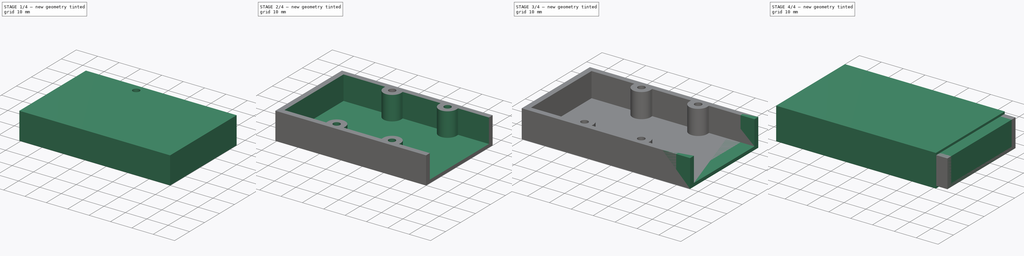
[diagram: build sequence overview — one tinted view per stage of 4, left to right]
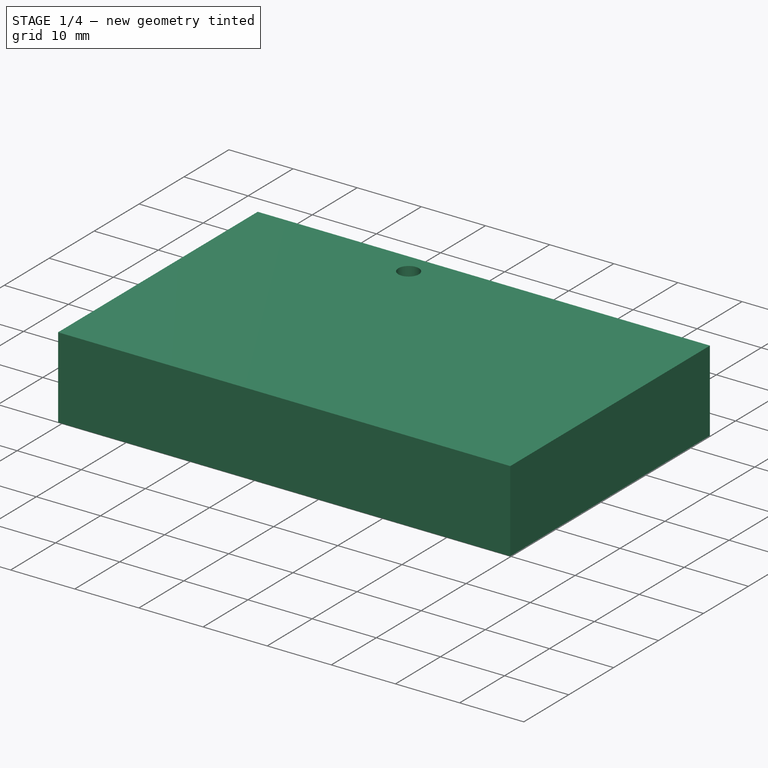
[diagram: stage 1 of 4 — iso view after this stage's code; geometry added in this stage tinted green]
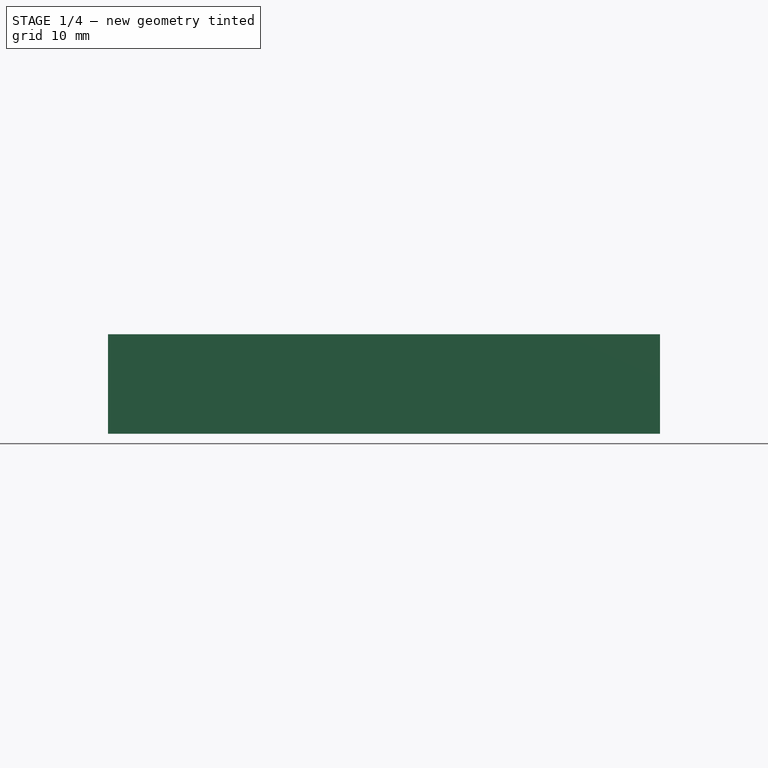
[diagram: stage 1 of 4 — front view after this stage's code; geometry added in this stage tinted green]
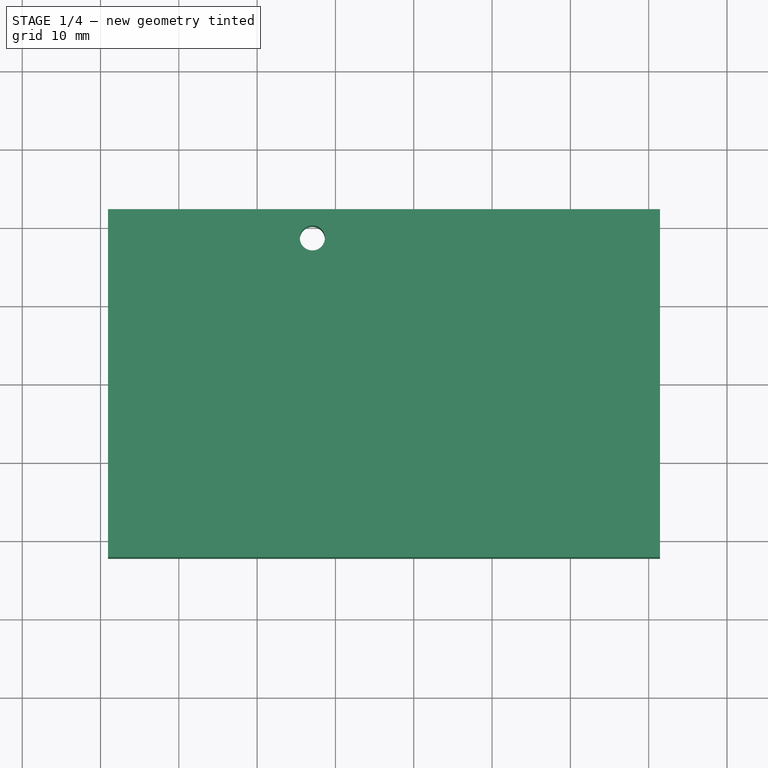
[diagram: stage 1 of 4 — top view after this stage's code; geometry added in this stage tinted green]
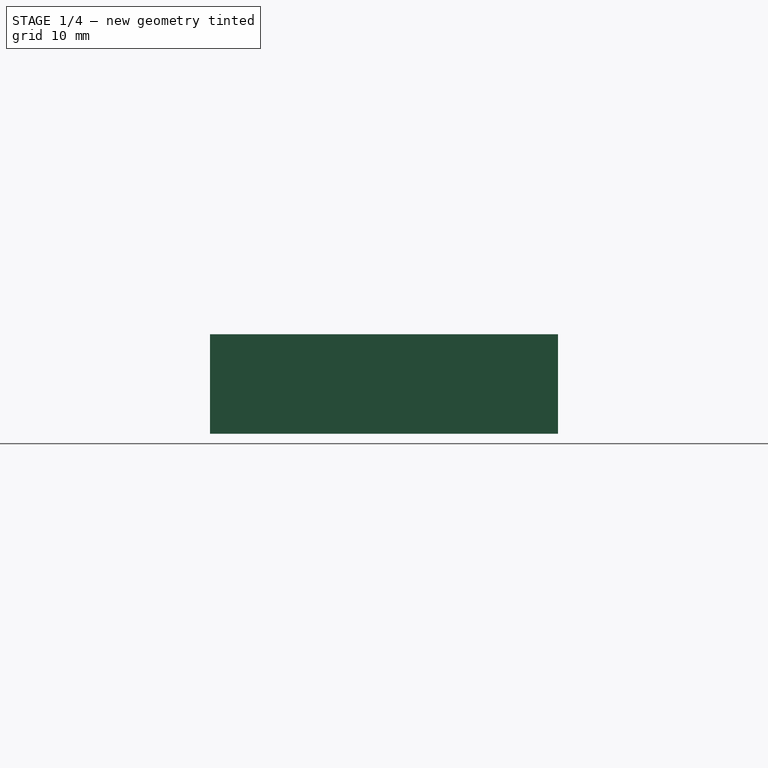
[diagram: stage 1 of 4 — right view after this stage's code; geometry added in this stage tinted green]
FCSTD DOCUMENT  (FreeCAD 0.17R13541 (Git))
Label: CAM_Keithley_17X_USB_Top
License: All rights reserved
LicenseURL: http://en.wikipedia.org/wiki/All_rights_reserved
objects: Path::FeaturePython×8, Sketcher::SketchObject×5, Part::FeaturePython×4, PartDesign::Pocket×3, PartDesign::Pad×2, PartDesign::Mirrored×2, PartDesign::Body×2, App::FeaturePython×2, Path::FeatureCompoundPython×2, Spreadsheet::Sheet×1, PartDesign::MultiTransform×1
note: 27 computed .brp shape members not serialized (recipe doc carries the construction recipe); baked Part::Feature solids carry a one-line shape summary decoded from their .brp

FEATURE [Spreadsheet::Sheet] Spreadsheet  label="dims"
  cells = A1=Case Thickness; B1(case_t)==0.5in; A2=Case Length; B2(case_l)=70.5; A3=Case Width; B3(case_w)==1.75in; A4=Case Side Thickness; B4(case_side_t)=2.5; A5=Case Top Thickness; B5(case_top_t)=1.5; A6=Mount Hole Diameter; B6(mnt_dia)=3.2000000000000002; A7=Mount Hole X Spacing; B7(mnt_x)=25.899999999999999; A8=Mount Hole Y Spacing; B8(mnt_y)=37.100000000000001; A9=PCB Right to Center; B9(right_to_cl)=31.449999999999999
FEATURE [Sketcher::SketchObject] Sketch
  MapMode = 5
  Support = -> [XY_Plane]
  expr: Constraints[11] = dims.right_to_cl
  expr: Constraints[10] = dims.case_w
  expr: Constraints[9] = dims.case_l
  sketch-geometry (4):
    g0: LineSegment StartX=-39.05 StartY=22.225 StartZ=0 EndX=31.45 EndY=22.225 EndZ=0
    g1: LineSegment StartX=31.45 StartY=22.225 StartZ=0 EndX=31.45 EndY=-22.225 EndZ=0
    g2: LineSegment StartX=31.45 StartY=-22.225 StartZ=0 EndX=-39.05 EndY=-22.225 EndZ=0
    g3: LineSegment StartX=-39.05 StartY=-22.225 StartZ=0 EndX=-39.05 EndY=22.225 EndZ=0
  constraints (12):
    c: Coincident(g0,g1)
    c: Coincident(g1,g2)
    c: Coincident(g2,g3)
    c: Coincident(g3,g0)
    c: Horizontal(g0)
    c: Horizontal(g2)
    c: Vertical(g1)
    c: Vertical(g3)
    c: Symmetric(g0,g1,g-1)
    c: DistanceX(g0,g0) = 70.5
    c: DistanceY(g1,g1) = 44.45
    c: DistanceX(g-1,g0) = 31.45
FEATURE [PartDesign::Pad] Pad
  Length = 12.7
  Length2 = 100
  Profile = -> Sketch
  Refine = true
  Type = 0
  expr: Length = dims.case_t
FEATURE [Sketcher::SketchObject] Sketch001
  MapMode = 5
  Placement = pos=(0,0,12.7) rot=(0,0,1;0rad)
  Support = -> [Pad]
  expr: Constraints[2] = dims.mnt_y / 2
  expr: Constraints[1] = dims.mnt_x / 2
  expr: Constraints[0] = dims.mnt_dia / 2
  sketch-geometry (1):
    g0: Circle CenterX=-12.95 CenterY=18.55 CenterZ=0 NormalX=0 NormalY=0 NormalZ=1 AngleXU=0 Radius=1.6
  constraints (3):
    c: Radius(g0) = 1.6
    c: DistanceX(g0,g-1) = 12.95
    c: DistanceY(g-1,g0) = 18.55
FEATURE [PartDesign::Pocket] Pocket
  BaseFeature = -> Pad
  Length = 5
  Length2 = 100
  Profile = -> Sketch001
  Refine = true
  Type = 1
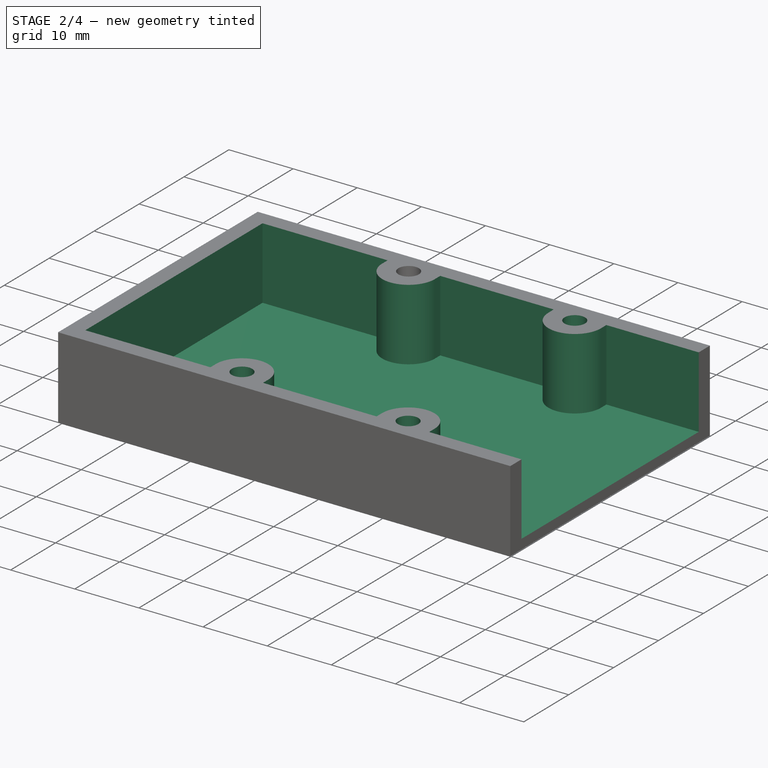
[diagram: stage 2 of 4 — iso view after this stage's code; geometry added in this stage tinted green]
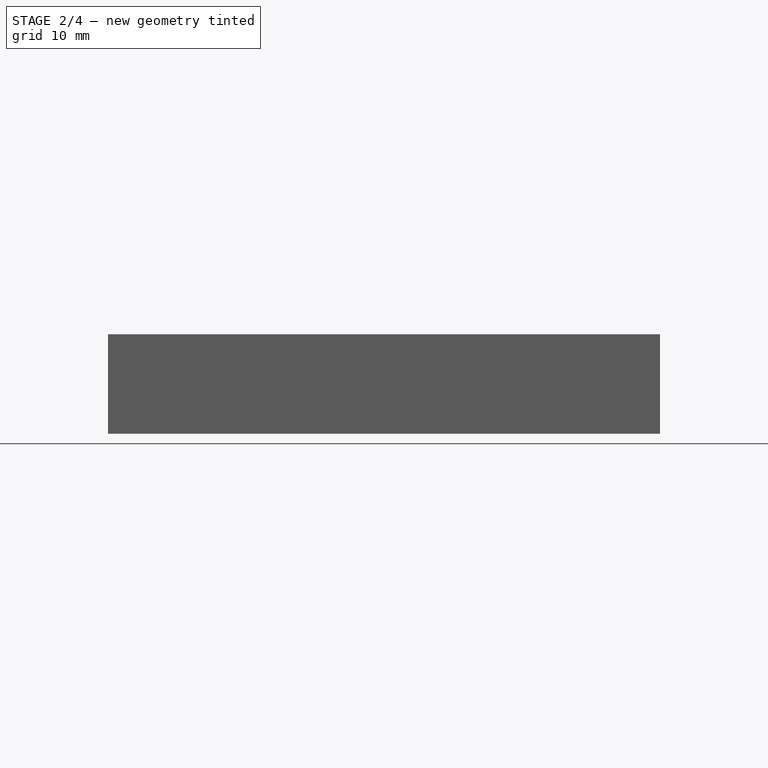
[diagram: stage 2 of 4 — front view after this stage's code; geometry added in this stage tinted green]
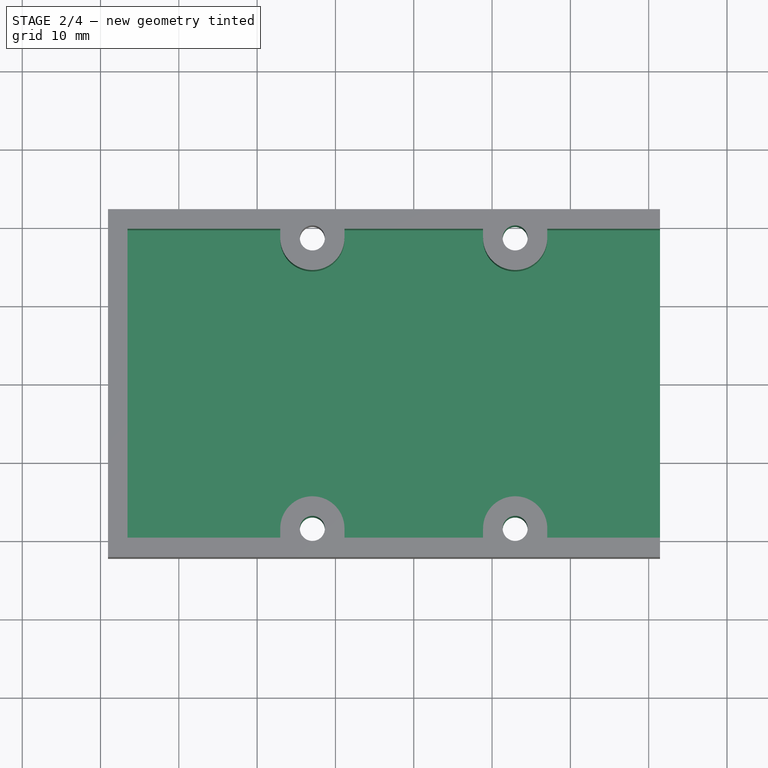
[diagram: stage 2 of 4 — top view after this stage's code; geometry added in this stage tinted green]
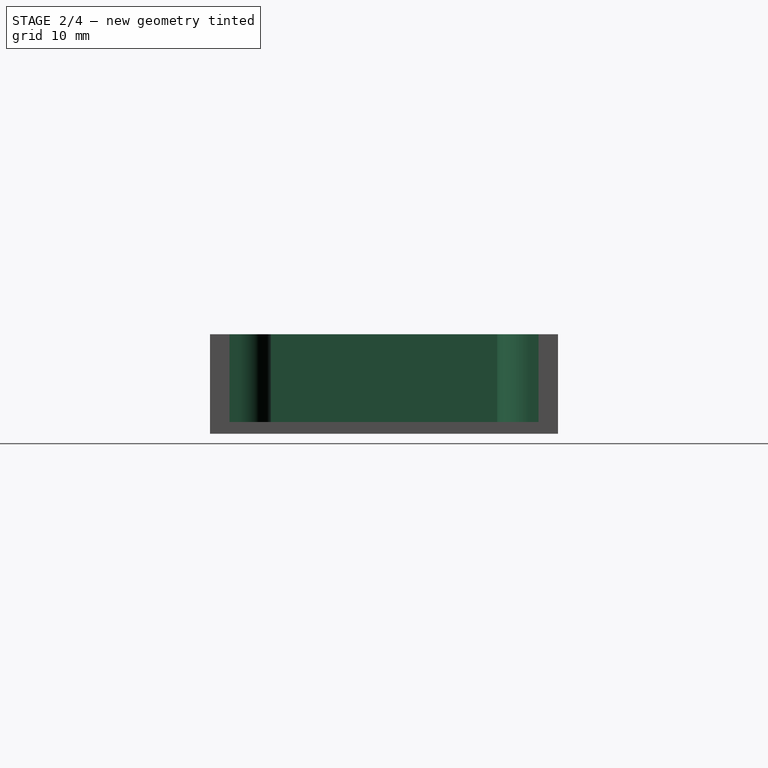
[diagram: stage 2 of 4 — right view after this stage's code; geometry added in this stage tinted green]
FEATURE [PartDesign::Mirrored] Mirrored
  MirrorPlane = -> YZ_Plane
  Refine = true
FEATURE [PartDesign::Mirrored] Mirrored001
  MirrorPlane = -> XZ_Plane
  Refine = true
FEATURE [PartDesign::MultiTransform] MultiTransform
  BaseFeature = -> Pocket
  Originals = -> [Pocket]
  Refine = true
  Transformations = -> [Mirrored,Mirrored001]
FEATURE [Sketcher::SketchObject] Sketch002
  ExternalGeometry = -> [MultiTransform]
  MapMode = 5
  Placement = pos=(0,0,0) rot=(1,0,0;3.14159rad)
  Support = -> [MultiTransform]
  expr: Constraints[10] = dims.case_side_t
  expr: Constraints[11] = dims.case_side_t
  expr: Constraints[28] = dims.mnt_dia / 2 + dims.case_side_t
  expr: Constraints[29] = dims.mnt_dia / 2 + dims.case_side_t
  expr: Constraints[36] = dims.mnt_dia / 2 + dims.case_side_t
  expr: Constraints[37] = dims.mnt_dia / 2 + dims.case_side_t
  sketch-geometry (28):
    g0: LineSegment [constr] StartX=-36.55 StartY=19.725 StartZ=0 EndX=31.45 EndY=19.725 EndZ=0
    g1: LineSegment [constr] StartX=31.45 StartY=19.725 StartZ=0 EndX=31.45 EndY=-19.725 EndZ=0
    g2: LineSegment [constr] StartX=31.45 StartY=-19.725 StartZ=0 EndX=-36.55 EndY=-19.725 EndZ=0
    g3: LineSegment [constr] StartX=-36.55 StartY=-19.725 StartZ=0 EndX=-36.55 EndY=19.725 EndZ=0
    g4: LineSegment StartX=-36.55 StartY=-19.725 StartZ=0 EndX=-36.55 EndY=19.725 EndZ=0
    g5: LineSegment StartX=-36.55 StartY=19.725 StartZ=0 EndX=-17.05 EndY=19.725 EndZ=0
    g6: LineSegment StartX=31.45 StartY=19.725 StartZ=0 EndX=17.05 EndY=19.725 EndZ=0
    g7: LineSegment StartX=31.45 StartY=-19.725 StartZ=0 EndX=17.05 EndY=-19.725 EndZ=0
    g8: LineSegment StartX=-36.55 StartY=-19.725 StartZ=0 EndX=-17.05 EndY=-19.725 EndZ=0
    g9: LineSegment [constr] StartX=-17.05 StartY=19.725 StartZ=0 EndX=-17.05 EndY=-19.725 EndZ=0
    g10: LineSegment [constr] StartX=17.05 StartY=19.725 StartZ=0 EndX=17.05 EndY=-19.725 EndZ=0
    g11: LineSegment StartX=31.45 StartY=19.725 StartZ=0 EndX=31.45 EndY=-19.725 EndZ=0
    g12: LineSegment StartX=-8.85 StartY=19.725 StartZ=0 EndX=8.85 EndY=19.725 EndZ=0
    g13: LineSegment StartX=-8.85 StartY=-19.725 StartZ=0 EndX=8.85 EndY=-19.725 EndZ=0
    g14: LineSegment [constr] StartX=-8.85 StartY=19.725 StartZ=0 EndX=-8.85 EndY=-19.725 EndZ=0
    g15: LineSegment [constr] StartX=8.85 StartY=-19.725 StartZ=0 EndX=8.85 EndY=19.725 EndZ=0
    g16: LineSegment StartX=-17.05 StartY=19.725 StartZ=0 EndX=-17.05 EndY=18.55 EndZ=0
    g17: LineSegment StartX=-8.85 StartY=19.725 StartZ=0 EndX=-8.85 EndY=18.55 EndZ=0
    g18: ArcOfCircle CenterX=-12.95 CenterY=18.55 CenterZ=0 NormalX=0 NormalY=0 NormalZ=1 AngleXU=0 Radius=4.1 StartAngle=3.14159 EndAngle=6.28319
    g19: LineSegment StartX=8.85 StartY=19.725 StartZ=0 EndX=8.85 EndY=18.55 EndZ=0
    g20: LineSegment StartX=17.05 StartY=19.725 StartZ=0 EndX=17.05 EndY=18.55 EndZ=0
    g21: LineSegment StartX=17.05 StartY=-19.725 StartZ=0 EndX=17.05 EndY=-18.55 EndZ=0
    g22: LineSegment StartX=8.85 StartY=-19.725 StartZ=0 EndX=8.85 EndY=-18.55 EndZ=0
    g23: LineSegment StartX=-8.85 StartY=-19.725 StartZ=0 EndX=-8.85 EndY=-18.55 EndZ=0
    g24: LineSegment StartX=-17.05 StartY=-19.725 StartZ=0 EndX=-17.05 EndY=-18.55 EndZ=0
    g25: ArcOfCircle CenterX=12.95 CenterY=18.55 CenterZ=0 NormalX=0 NormalY=0 NormalZ=1 AngleXU=0 Radius=4.1 StartAngle=3.14159 EndAngle=6.28319
    g26: ArcOfCircle CenterX=-12.95 CenterY=-18.55 CenterZ=0 NormalX=0 NormalY=0 NormalZ=1 AngleXU=0 Radius=4.1 StartAngle=2.0124e-08 EndAngle=3.14159
    g27: ArcOfCircle CenterX=12.95 CenterY=-18.55 CenterZ=0 NormalX=0 NormalY=0 NormalZ=1 AngleXU=0 Radius=4.1 StartAngle=4.55866e-06 EndAngle=3.14159
  constraints (76):
    c: Coincident(g0,g1)
    c: Coincident(g1,g2)
    c: Coincident(g2,g3)
    c: Coincident(g3,g0)
    c: Horizontal(g0)
    c: Horizontal(g2)
    c: Vertical(g1)
    c: Vertical(g3)
    c: PointOnObject(g1,g-10)
    c: Symmetric(g0,g1,g-1)
    c: DistanceY(g0,g-10) = 2.5
    c: DistanceX(g-4,g0) = 2.5
    c: Coincident(g4,g2)
    c: Coincident(g5,g4)
    c: Coincident(g6,g0)
    c: Coincident(g8,g2)
    c: Coincident(g4,g0)
    c: Coincident(g7,g1)
    c: PointOnObject(g7,g2)
    c: PointOnObject(g6,g0)
    c: PointOnObject(g5,g0)
    c: PointOnObject(g8,g2)
    c: Coincident(g9,g5)
    c: Coincident(g10,g6)
    c: Coincident(g10,g7)
    c: Coincident(g9,g8)
    c: Vertical(g9)
    c: Vertical(g10)
    c: DistanceX(g5,g-9) = 4.1
    c: DistanceX(g-8,g6) = 4.1
    c: Coincident(g11,g0)
    c: Coincident(g11,g1)
    c: PointOnObject(g12,g0)
    c: PointOnObject(g13,g2)
    c: PointOnObject(g12,g0)
    c: PointOnObject(g13,g2)
    c: DistanceX(g-9,g12) = 4.1
    c: DistanceX(g12,g-8) = 4.1
    c: Coincident(g14,g12)
    c: Coincident(g14,g13)
    c: Vertical(g14)
    c: Coincident(g15,g13)
    c: Coincident(g15,g12)
    c: Vertical(g15)
    c: Coincident(g16,g5)
    c: Coincident(g17,g12)
    c: PointOnObject(g17,g14)
    c: PointOnObject(g16,g9)
    c: Coincident(g18,g-9)
    c: Coincident(g18,g16)
    c: Coincident(g18,g17)
    c: Tangent(g18,g14)
    c: Coincident(g19,g12)
    c: Coincident(g20,g6)
    c: Coincident(g21,g7)
    c: Coincident(g22,g13)
    c: Coincident(g23,g13)
    c: Coincident(g24,g8)
    c: PointOnObject(g24,g9)
    c: PointOnObject(g23,g14)
    c: PointOnObject(g22,g15)
    c: PointOnObject(g21,g10)
    c: PointOnObject(g20,g10)
    c: PointOnObject(g19,g15)
    c: Coincident(g25,g-8)
    c: Coincident(g25,g19)
    c: Coincident(g25,g20)
    c: Coincident(g26,g-6)
    c: Coincident(g26,g24)
    c: Coincident(g26,g23)
    c: Coincident(g27,g-7)
    c: Coincident(g27,g22)
    c: Coincident(g27,g21)
    c: Tangent(g25,g10)
    c: Tangent(g26,g14)
    c: Tangent(g27,g15)
FEATURE [PartDesign::Pocket] Pocket001
  BaseFeature = -> MultiTransform
  Length = 11.2
  Length2 = 100
  Offset = -1.5
  Profile = -> Sketch002
  Refine = true
  Type = 0
  expr: Length = dims.case_t * 1 - dims.case_top_t * 1mm
FEATURE [Path::FeaturePython] T1__1_4_inch_4_flute_endmill  label="T1: 1/4 inch 3 flute endmill"  # Path/CAM operation (typed FeaturePython)
  HorizFeed = 1.5
  HorizRapid = 0
  SpindleDir = 0
  SpindleSpeed = 1300
  ToolNumber = 1
  VertFeed = 1.5
  VertRapid = 0
  expr: HorizRapid = SetupSheet.HorizRapid
  expr: VertRapid = SetupSheet.VertRapid
FEATURE [App::FeaturePython] SetupSheet001  # Path/CAM operation (typed FeaturePython)
  ClearanceHeightExpression = StartDepth+SetupSheet001.ClearanceHeightOffset
  ClearanceHeightOffset = 5
  FinalDepthExpression = OpFinalDepth
  HorizRapid = 0
  SafeHeightExpression = StartDepth+SetupSheet001.SafeHeightOffset
  SafeHeightOffset = 3
  StartDepthExpression = OpStartDepth
  StepDownExpression = OpToolDiameter
  VertRapid = 0
FEATURE [Part::FeaturePython] Clone001  label="Base-Body"  # Draft clone (typed FeaturePython)
  AttacherType = Attacher::AttachEngine3D
  Fuse = false
  Objects = -> [Body]
  PathResource = Base
  Placement = pos=(0,0,12.7) rot=(1,0,0;3.14159rad)
  Scale = (1,1,1)
  expr: Placement.Base.z = dims.case_t
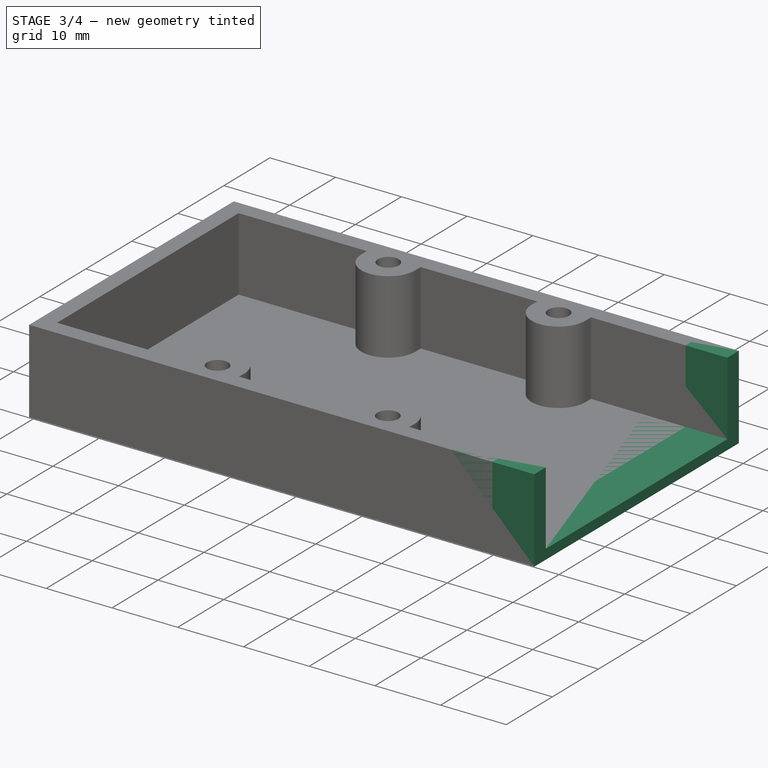
[diagram: stage 3 of 4 — iso view after this stage's code; geometry added in this stage tinted green]
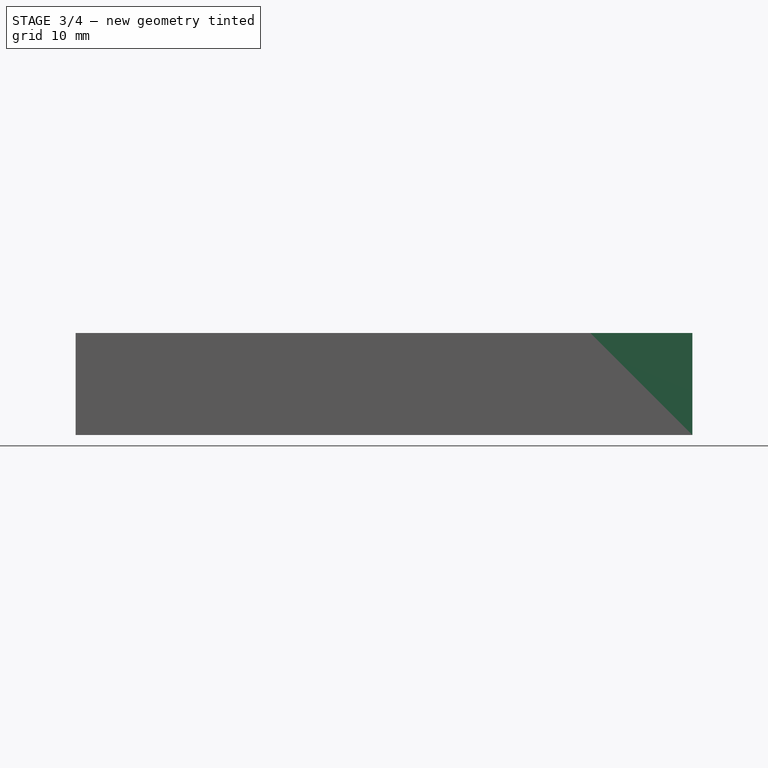
[diagram: stage 3 of 4 — front view after this stage's code; geometry added in this stage tinted green]
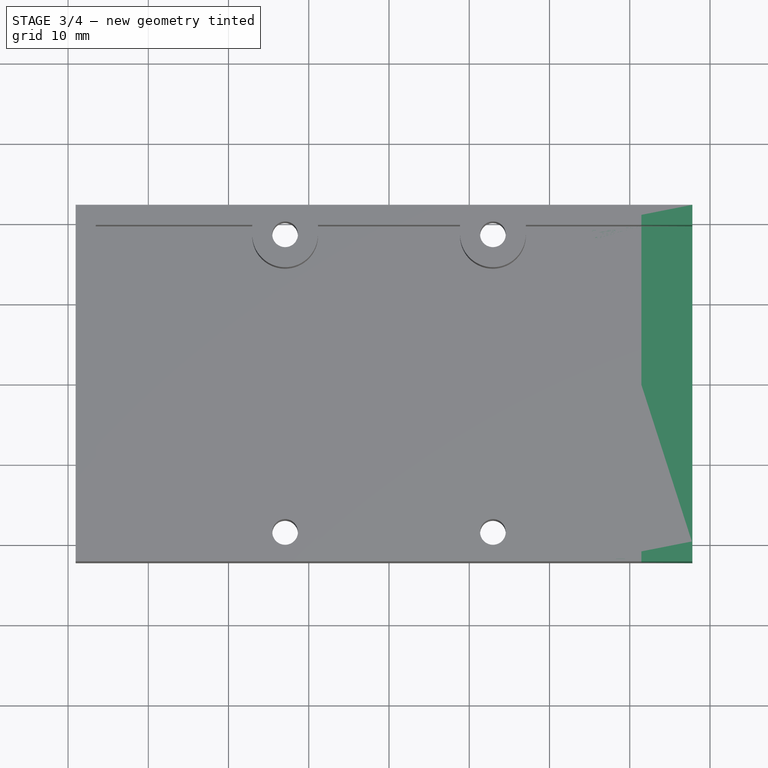
[diagram: stage 3 of 4 — top view after this stage's code; geometry added in this stage tinted green]
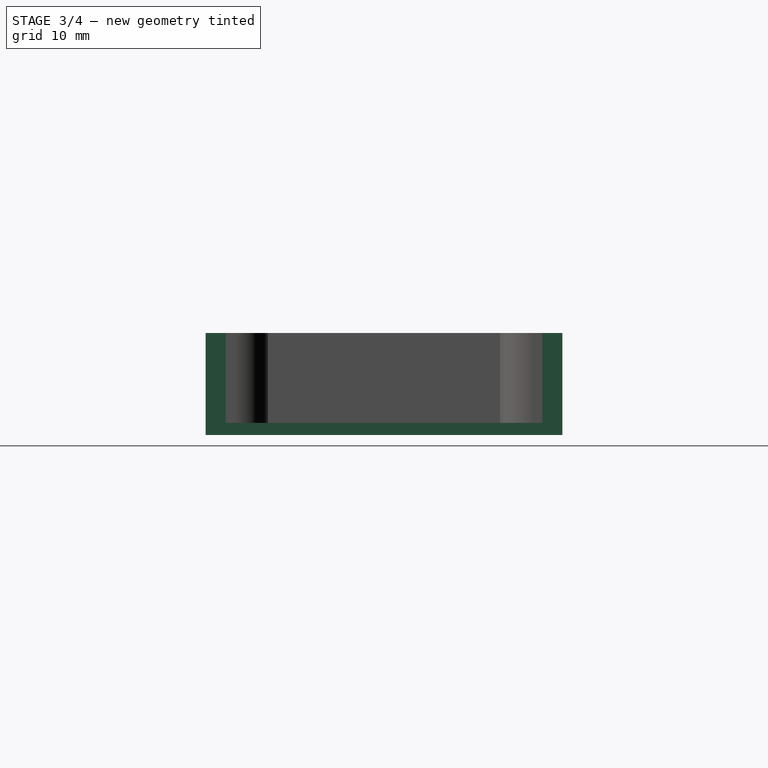
[diagram: stage 3 of 4 — right view after this stage's code; geometry added in this stage tinted green]
FEATURE [PartDesign::Body] Body
  Group = -> [Sketch,Pad,Sketch001,Pocket,MultiTransform,Mirrored,Mirrored001,Sketch002,Pocket001]
  Origin = -> Origin
  Tip = -> Pocket001
FEATURE [Sketcher::SketchObject] Sketch003
  MapMode = 5
  Support = -> [XY_Plane001]
  expr: Constraints[11] = dims.right_to_cl
  expr: Constraints[10] = dims.case_w
  expr: Constraints[9] = dims.case_l
  sketch-geometry (8):
    g0: LineSegment [constr] StartX=-39.05 StartY=22.225 StartZ=0 EndX=31.45 EndY=22.225 EndZ=0
    g1: LineSegment [constr] StartX=31.45 StartY=22.225 StartZ=0 EndX=31.45 EndY=-22.225 EndZ=0
    g2: LineSegment [constr] StartX=31.45 StartY=-22.225 StartZ=0 EndX=-39.05 EndY=-22.225 EndZ=0
    g3: LineSegment [constr] StartX=-39.05 StartY=-22.225 StartZ=0 EndX=-39.05 EndY=22.225 EndZ=0
    g4: LineSegment StartX=25.1 StartY=22.225 StartZ=0 EndX=37.8 EndY=22.225 EndZ=0
    g5: LineSegment StartX=37.8 StartY=22.225 StartZ=0 EndX=37.8 EndY=-22.225 EndZ=0
    g6: LineSegment StartX=37.8 StartY=-22.225 StartZ=0 EndX=25.1 EndY=-22.225 EndZ=0
    g7: LineSegment StartX=25.1 StartY=-22.225 StartZ=0 EndX=25.1 EndY=22.225 EndZ=0
  constraints (24):
    c: Coincident(g0,g1)
    c: Coincident(g1,g2)
    c: Coincident(g2,g3)
    c: Coincident(g3,g0)
    c: Horizontal(g0)
    c: Horizontal(g2)
    c: Vertical(g1)
    c: Vertical(g3)
    c: Symmetric(g0,g1,g-1)
    c: DistanceX(g0,g0) = 70.5
    c: DistanceY(g1,g0) = 44.45
    c: DistanceX(g-1,g0) = 31.45
    c: Coincident(g4,g5)
    c: Coincident(g5,g6)
    c: Coincident(g6,g7)
    c: Coincident(g7,g4)
    c: Horizontal(g4)
    c: Horizontal(g6)
    c: Vertical(g5)
    c: Vertical(g7)
    c: PointOnObject(g4,g0)
    c: PointOnObject(g6,g2)
    c: DistanceX(g4,g0) = 6.35
    c: DistanceX(g0,g4) = 6.35
FEATURE [PartDesign::Pad] Pad001
  Length = 12.7
  Length2 = 100
  Profile = -> Sketch003
  Refine = true
  Type = 0
  expr: Length = dims.case_t
FEATURE [Sketcher::SketchObject] Sketch004
  ExternalGeometry = -> [Pad001]
  MapMode = 5
  Placement = pos=(0,0,0) rot=(1,0,0;3.14159rad)
  Support = -> [Pad001]
  expr: Constraints[11] = dims.case_side_t
  sketch-geometry (4):
    g0: LineSegment StartX=25.1 StartY=19.725 StartZ=0 EndX=37.8 EndY=19.725 EndZ=0
    g1: LineSegment StartX=37.8 StartY=19.725 StartZ=0 EndX=37.8 EndY=-19.725 EndZ=0
    g2: LineSegment StartX=37.8 StartY=-19.725 StartZ=0 EndX=25.1 EndY=-19.725 EndZ=0
    g3: LineSegment StartX=25.1 StartY=-19.725 StartZ=0 EndX=25.1 EndY=19.725 EndZ=0
  constraints (12):
    c: Coincident(g0,g1)
    c: Coincident(g1,g2)
    c: Coincident(g2,g3)
    c: Coincident(g3,g0)
    c: Horizontal(g0)
    c: Horizontal(g2)
    c: Vertical(g1)
    c: Vertical(g3)
    c: PointOnObject(g0,g-3)
    c: PointOnObject(g1,g-4)
    c: Symmetric(g0,g1,g-1)
    c: DistanceY(g0,g-4) = 2.5
FEATURE [PartDesign::Pocket] Pocket002
  BaseFeature = -> Pad001
  Length = 11.2
  Length2 = 100
  Profile = -> Sketch004
  Refine = true
  Type = 0
  expr: Length = dims.case_t - dims.case_top_t * 1mm
FEATURE [PartDesign::Body] Body001  label="Pocket_Openend_Clearout"
  Group = -> [Sketch003,Pad001,Sketch004,Pocket002]
  Origin = -> Origin001
  Tip = -> Pocket002
FEATURE [App::FeaturePython] SetupSheet  # Path/CAM operation (typed FeaturePython)
  ClearanceHeightExpression = StartDepth+SetupSheet.ClearanceHeightOffset
  ClearanceHeightOffset = 5
  FinalDepthExpression = OpFinalDepth
  HorizRapid = 0
  SafeHeightExpression = StartDepth+SetupSheet.SafeHeightOffset
  SafeHeightOffset = 3
  StartDepthExpression = OpStartDepth
  StepDownExpression = OpToolDiameter
  VertRapid = 0
FEATURE [Part::FeaturePython] Clone  label="Base-Pocket_Openend_Clearout"  # Draft clone (typed FeaturePython)
  AttacherType = Attacher::AttachEngine3D
  Fuse = false
  Objects = -> [Body001]
  PathResource = Base
  Placement = pos=(0,0,12.7) rot=(1,0,0;3.14159rad)
  Scale = (1,1,1)
  expr: Placement.Base.z = dims.case_t
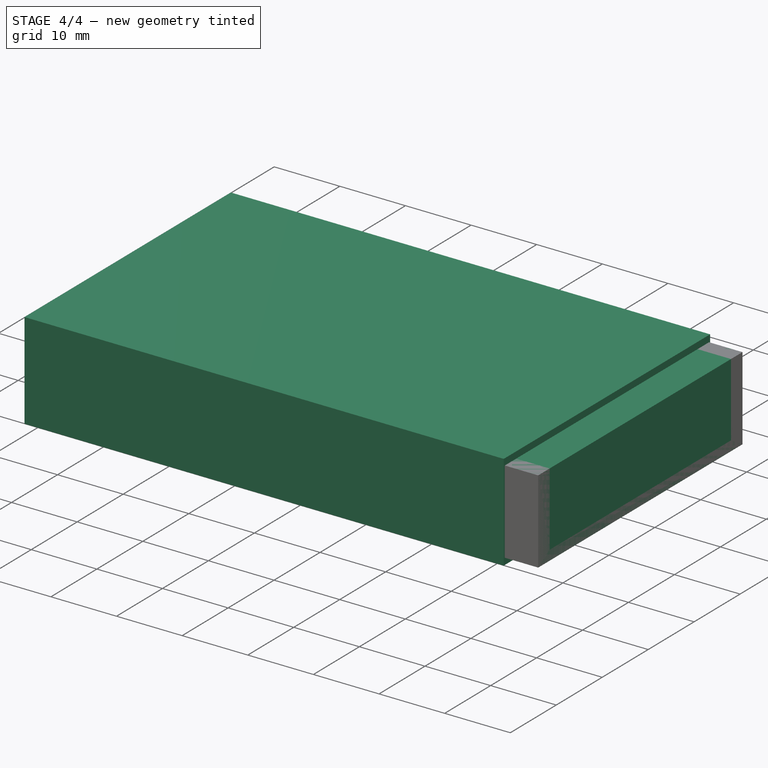
[diagram: stage 4 of 4 — iso view after this stage's code; geometry added in this stage tinted green]
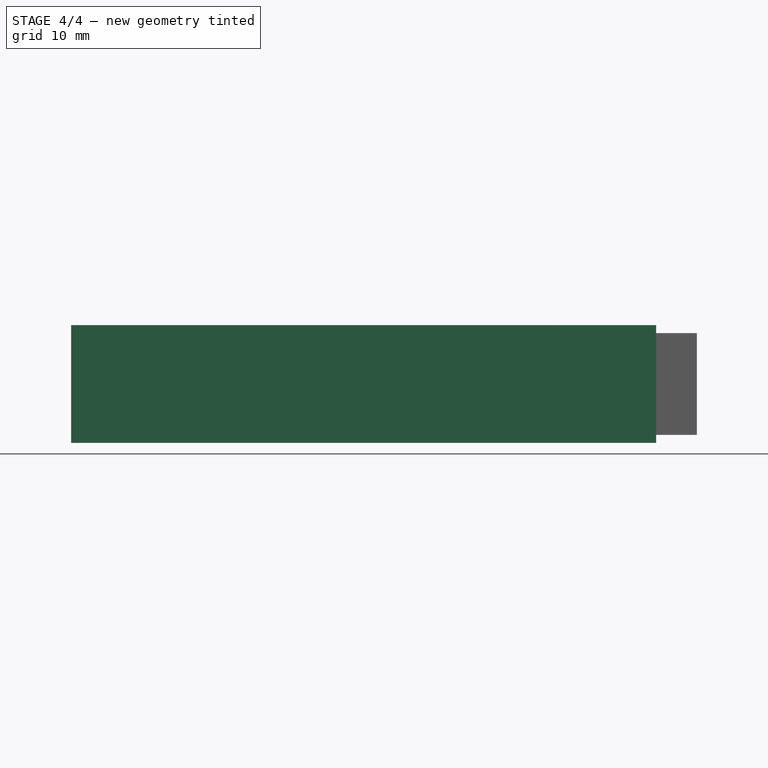
[diagram: stage 4 of 4 — front view after this stage's code; geometry added in this stage tinted green]
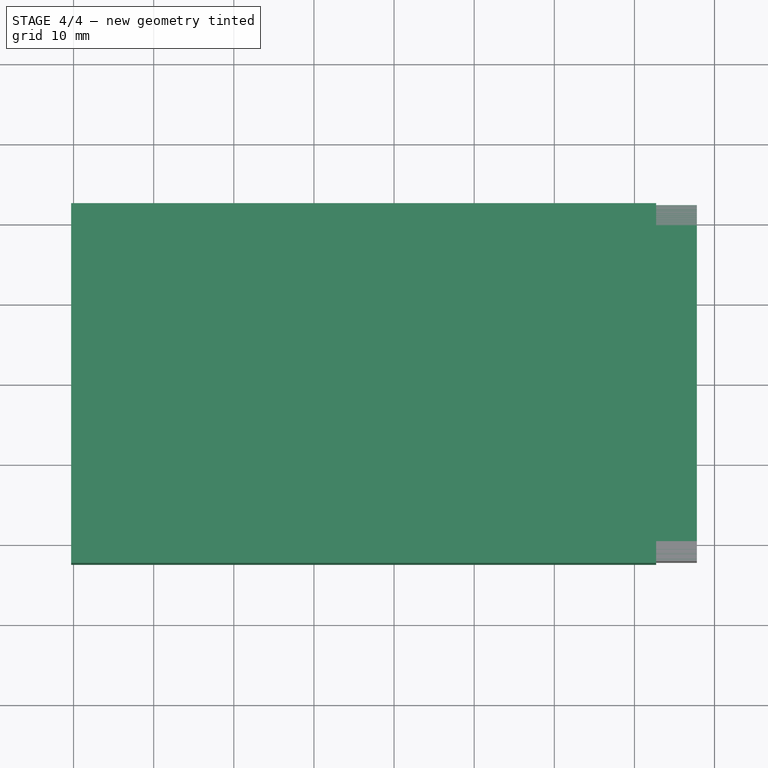
[diagram: stage 4 of 4 — top view after this stage's code; geometry added in this stage tinted green]
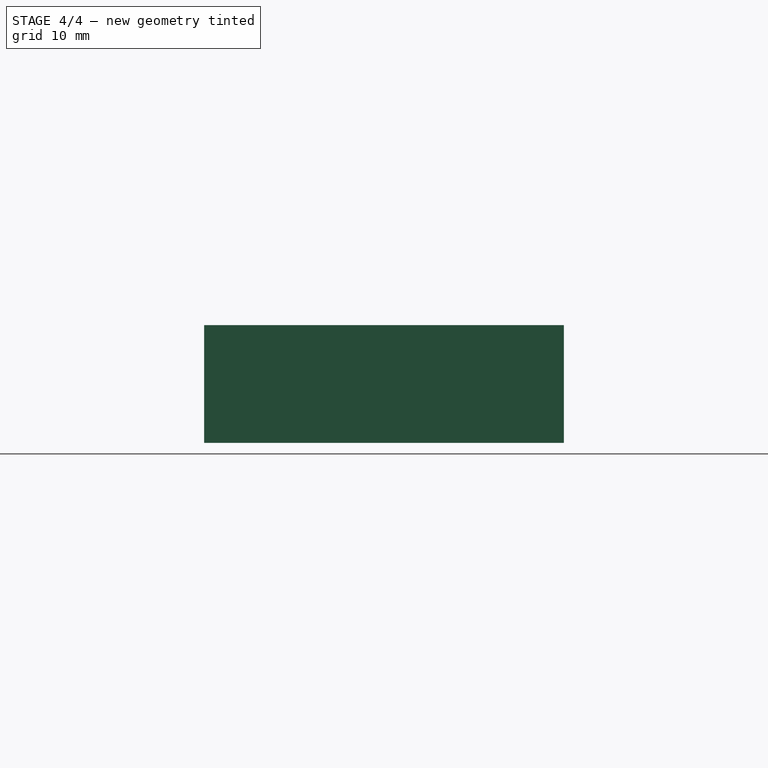
[diagram: stage 4 of 4 — right view after this stage's code; geometry added in this stage tinted green]
FEATURE [Path::FeaturePython] T1__1_4_inch_4_flute_endmill001  label="T1: 1/4 inch 3 flute endmil"  # Path/CAM operation (typed FeaturePython)
  HorizFeed = 1.5
  HorizRapid = 0
  SpindleDir = 0
  SpindleSpeed = 1050
  ToolNumber = 1
  VertFeed = 1.5
  VertRapid = 0
  expr: HorizRapid = SetupSheet001.HorizRapid
  expr: VertRapid = SetupSheet001.VertRapid
FEATURE [Part::FeaturePython] Stock003  # WARN: FeaturePython — macro-defined, semantics opaque (R4)
  Height = 12.7
  Length = 12.7
  Placement = pos=(25.1,-22.225,0) rot=(0,0,1;0rad)
  StockType = CreateBox
  Width = 44.45
FEATURE [Part::FeaturePython] Stock  # WARN: FeaturePython — macro-defined, semantics opaque (R4)
  Base = -> Body
  ExtXneg = 1.26
  ExtXpos = 1.26
  ExtYneg = 0.23
  ExtYpos = 0.23
  ExtZneg = 1
  ExtZpos = 1
  Placement = pos=(0,0,12.7) rot=(1,0,0;3.14159rad)
  StockType = FromBase
FEATURE [Path::FeaturePython] Pocket_Shape  # Path/CAM operation (typed FeaturePython)
  Active = true
  AreaParams:
    OpenMode = 0
    Angle = 45.0
    MinArcPoints = 4
    Coplanar = 0
    Tolerance = 1e-07
    CleanDistance = 0.0
    PocketExtraOffset = 0.0
    RoundPrecision = 0.0
    AngleShift = 0.0
    SubjectFill = 0
    PocketMode = 2
    Simplify = False
    SectionTolerance = 1e-06
    MaxArcPoints = 100
    Offset = 0.0
    Accuracy = 0.01
    PocketStepover = 5.715
    ClipFill = 0
    ToolRadius = 3.175
    Outline = False
    ClipperScale = 10000000.0
    FromCenter = True
    Explode = False
    EndType = 0
    Shift = 0.0
    ExtraPass = 0
    Project = False
    JoinType = 0
    Thicken = False
    Stepdown = 1.0
    SectionMode = 2
    MiterLimit = 2.0
    Deflection = 0.01
    Reorient = True
    FitArcs = True
    SectionCount = -1
    SectionOffset = 0.0
    Stepover = 0.0
    Unit = 1.0
    Fill = 0
  Base = -> [Clone]
  ClearanceHeight = 17.7
  CutMode = 0
  ExtraOffset = 0
  FinalDepth = 1.5
  FinishDepth = 0
  KeepToolDown = false
  MinTravel = false
  OffsetPattern = 1
  OpFinalDepth = 1.5
  OpStartDepth = 12.7
  OpToolDiameter = 6.35
  PathParams = {'resume_height': 15.7, 'feedrate': 1.5, 'verbose': True, 'orientation': 1, 'return_end': True, 'preamble': False, 'retraction': 17.7, 'feedrate_v': 1.5}
  SafeHeight = 15.7
  StartAt = 0
  StartDepth = 12.7
  StartPoint = (0,0,0)
  StepDown = 1.52
  StepOver = 90
  ToolController = -> T1__1_4_inch_4_flute_endmill
  UseStartPoint = false
  ZigZagAngle = 45
  expr: ClearanceHeight = StartDepth + SetupSheet.ClearanceHeightOffset
  expr: SafeHeight = StartDepth + SetupSheet.SafeHeightOffset
  expr: FinalDepth = OpFinalDepth
  expr: StartDepth = OpStartDepth
FEATURE [Path::FeatureCompoundPython] Operations  # Path/CAM operation (typed FeaturePython)
  Group = -> [Pocket_Shape]
  UsePlacements = false
FEATURE [Path::FeaturePython] Job  label="Pocket_Clearout"  # Path/CAM operation (typed FeaturePython)
  Base = -> Clone
  GeometryTolerance = 0.01
  Operations = -> Operations
  PostProcessor = 1
  PostProcessorOutputFile = %D/gcode/%d.gcode
  SetupSheet = -> SetupSheet
  Stock = -> Stock003
  ToolController = -> [T1__1_4_inch_4_flute_endmill]
FEATURE [Path::FeaturePython] Custom  label="Clearout"  # Path/CAM operation (typed FeaturePython)
  Gcode = (Pocket_Shape) | G0 Z17.700000 | G0 X34.625000 Y16.550000 | G0 Z15.700000 | G1 F2.666667 X34.625000 Y16.550000 Z11.180000 | G1 F2.666667 X28.275000 Y16.550000 Z11.180000 | G1 F2.666667 X28.275000 Y-16.550000 Z11.180000 | G1 F2.666667 X34.625000 Y-16.550000 Z11.180000 | G1 F2.666667 X34.625000 Y16.550000 Z11.180000 | G1 F2.666667 X34.625000 Y16.550000 Z9.660000 | G1 F2.666667 X28.275000 Y16.550000 Z9.660000 | G1 F2.666667 X28.275000 Y-16.550000 Z9.660000 | G1 F2.666667 X34.625000 Y-16.550000 Z9.660000 | G1 F2.666667 X34.625000 Y16.550000 Z9.660000 | G1 F2.666667 X34.625000 Y16.550000 Z8.140000 | G1 F2.666667 X28.275000 Y16.550000 Z8.140000 | G1 F2.666667 X28.275000 Y-16.550000 Z8.140000 | G1 F2.666667 X34.625000 Y-16.550000 Z8.140000 | G1 F2.666667 X34.625000 Y16.550000 Z8.140000 | G1 F2.666667 X34.625000 Y16.550000 Z6.620000 | G1 F2.666667 X28.275000 Y16.550000 Z6.620000 | G1 F2.666667 X28.275000 Y-16.550000 Z6.620000 | G1 F2.666667 X34.625000 Y-16.550000 Z6.620000 | G1 F2.666667 X34.625000 Y16.550000 Z6.620000 | G1 F2.666667 X34.625000 Y16.550000 Z5.100000 | G1 F2.666667 X28.275000 Y16.550000 Z5.100000 | G1 F2.666667 X28.275000 Y-16.550000 Z5.100000 | G1 F2.666667 X34.625000 Y-16.550000 Z5.100000 | G1 F2.666667 X34.625000 Y16.550000 Z5.100000 | G1 F2.666667 X34.625000 Y16.550000 Z3.580000 | G1 F2.666667 X28.275000 Y16.550000 Z3.580000 | G1 F2.666667 X28.275000 Y-16.550000 Z3.580000 | G1 F2.666667 X34.625000 Y-16.550000 Z3.580000 | G1 F2.666667 X34.625000 Y16.550000 Z3.580000 | G1 F2.666667 X34.625000 Y16.550000 Z2.060000 | G1 F2.666667 X28.275000 Y16.550000 Z2.060000 | G1 F2.666667 X28.275000 Y-16.550000 Z2.060000 | G1 F2.666667 X34.625000 Y-16.550000 Z2.060000 | G1 F2.666667 X34.625000 Y16.550000 Z2.060000 | G1 F2.666667 X34.625000 Y16.550000 Z1.500001 | G1 F2.666667 X28.275000 Y16.550000 Z1.500001 | G1 F2.666667 X28.275000 Y-16.550000 Z1.500001 | G1 F2.666667 X34.625000 Y-16.550000 Z1.500001 | G1 F2.666667 X34.625000 Y16.550000 Z1.500001 | G0 Z17.700000
FEATURE [Path::FeaturePython] Pocket_Shape001  # Path/CAM operation (typed FeaturePython)
  Active = true
  AreaParams:
    OpenMode = 0
    Angle = 45.0
    MinArcPoints = 4
    Coplanar = 0
    Tolerance = 1e-07
    CleanDistance = 0.0
    PocketExtraOffset = 0.0
    RoundPrecision = 0.0
    AngleShift = 0.0
    SubjectFill = 0
    PocketMode = 4
    Simplify = False
    SectionTolerance = 1e-06
    MaxArcPoints = 100
    Offset = 0.0
    Accuracy = 0.01
    PocketStepover = 5.715
    ClipFill = 0
    ToolRadius = 3.175
    Outline = False
    ClipperScale = 10000000.0
    FromCenter = True
    Explode = False
    EndType = 0
    Shift = 0.0
    ExtraPass = 0
    Project = False
    JoinType = 0
    Thicken = False
    Stepdown = 1.0
    SectionMode = 2
    MiterLimit = 2.0
    Deflection = 0.01
    Reorient = True
    FitArcs = True
    SectionCount = -1
    SectionOffset = 0.0
    Stepover = 0.0
    Unit = 1.0
    Fill = 0
  Base = -> [Clone001]
  ClearanceHeight = 18.7
  CutMode = 0
  ExtraOffset = 0
  FinalDepth = 1.5
  FinishDepth = 0
  KeepToolDown = false
  MinTravel = false
  OffsetPattern = 3
  OpFinalDepth = 1.5
  OpStartDepth = 13.7
  OpToolDiameter = 6.35
  PathParams = {'resume_height': 16.7, 'feedrate': 1.5, 'verbose': True, 'orientation': 1, 'return_end': True, 'preamble': False, 'retraction': 18.7, 'feedrate_v': 1.5}
  SafeHeight = 16.7
  StartAt = 0
  StartDepth = 13.7
  StartPoint = (0,0,0)
  StepDown = 1.52
  StepOver = 90
  ToolController = -> T1__1_4_inch_4_flute_endmill001
  UseStartPoint = false
  ZigZagAngle = 45
  expr: ClearanceHeight = StartDepth + SetupSheet001.ClearanceHeightOffset
  expr: SafeHeight = StartDepth + SetupSheet001.SafeHeightOffset
  expr: FinalDepth = OpFinalDepth
  expr: StartDepth = OpStartDepth
FEATURE [Path::FeaturePython] Contour  # Path/CAM operation (typed FeaturePython)
  Active = true
  AreaParams:
    OpenMode = 0
    Angle = 45.0
    MinArcPoints = 4
    Coplanar = 2
    Tolerance = 1e-07
    CleanDistance = 0.0
    PocketExtraOffset = 0.0
    RoundPrecision = 0.0
    AngleShift = 0.0
    SubjectFill = 0
    PocketMode = 0
    Simplify = False
    SectionTolerance = 1e-06
    MaxArcPoints = 100
    Offset = 3.175
    Accuracy = 0.01
    PocketStepover = 0.0
    ClipFill = 0
    ToolRadius = 1.0
    Outline = False
    ClipperScale = 10000000.0
    FromCenter = False
    Explode = False
    EndType = 0
    Shift = 0.0
    ExtraPass = 0
    Project = False
    JoinType = 0
    Thicken = False
    Stepdown = 1.0
    SectionMode = 2
    MiterLimit = 2.0
    Deflection = 0.01
    Reorient = True
    FitArcs = True
    SectionCount = -1
    SectionOffset = 0.0
    Stepover = 0.0
    Unit = 1.0
    Fill = 0
  ClearanceHeight = 18.7
  Direction = 0
  FinalDepth = -1
  JoinType = 0
  MiterLimit = 0.1
  OffsetExtra = 0
  OpFinalDepth = -1
  OpStartDepth = 13.7
  OpToolDiameter = 6.35
  PathParams = {'resume_height': 16.700000000000003, 'feedrate': 1.5, 'verbose': True, 'orientation': 1, 'return_end': True, 'preamble': False, 'retraction': 18.700000000000003, 'feedrate_v': 1.5}
  SafeHeight = 16.7
  Side = 0
  StartDepth = 13.7
  StartPoint = (0,0,0)
  StepDown = 1.52
  ToolController = -> T1__1_4_inch_4_flute_endmill001
  UseComp = true
  UseStartPoint = false
  expr: ClearanceHeight = StartDepth + SetupSheet001.ClearanceHeightOffset
  expr: SafeHeight = StartDepth + SetupSheet001.SafeHeightOffset
  expr: FinalDepth = OpFinalDepth
  expr: StartDepth = OpStartDepth
FEATURE [Path::FeatureCompoundPython] Operations001  # Path/CAM operation (typed FeaturePython)
  Group = -> [Custom,Contour,Pocket_Shape001]
  UsePlacements = false
FEATURE [Path::FeaturePython] Job001  label="Profile_and_Pocket"  # Path/CAM operation (typed FeaturePython)
  Base = -> Clone001
  GeometryTolerance = 0.01
  Operations = -> Operations001
  PostProcessor = 1
  PostProcessorOutputFile = %D/gcode/%d.gcode
  SetupSheet = -> SetupSheet001
  Stock = -> Stock
  ToolController = -> [T1__1_4_inch_4_flute_endmill001]
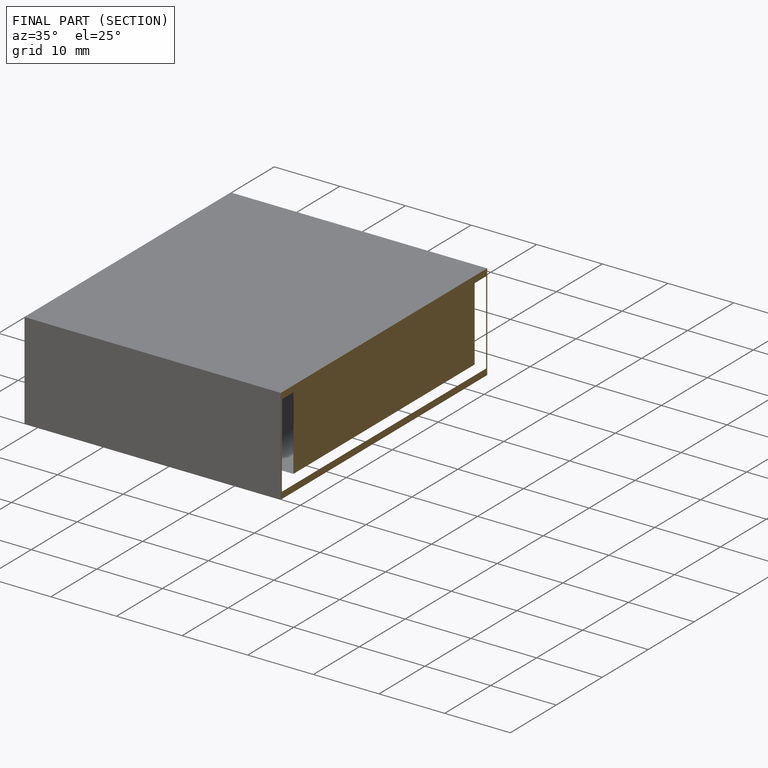
[diagram: finished part — half-section view (interior)]
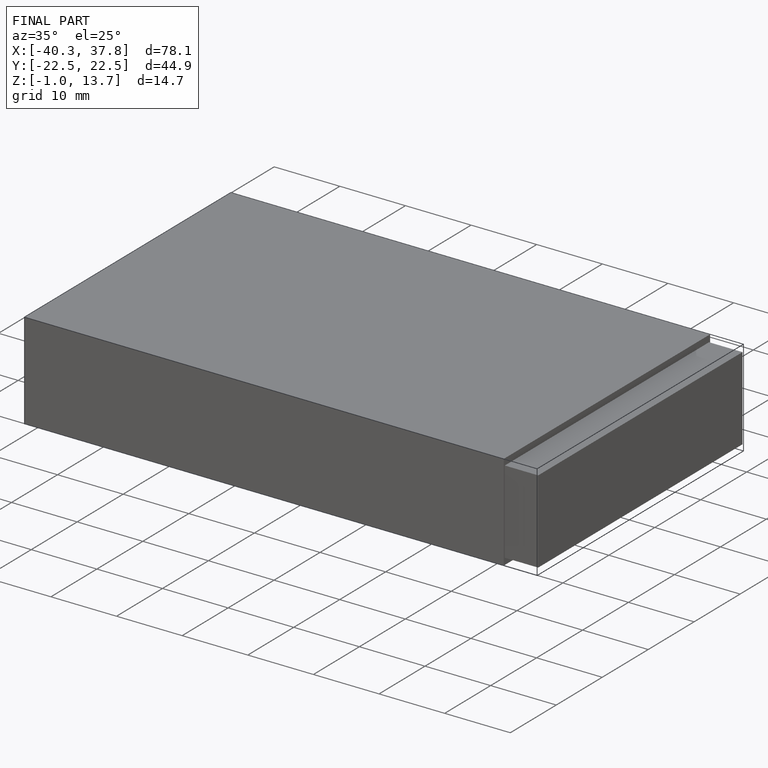
[diagram: finished part — iso view with bounding-box wireframe]
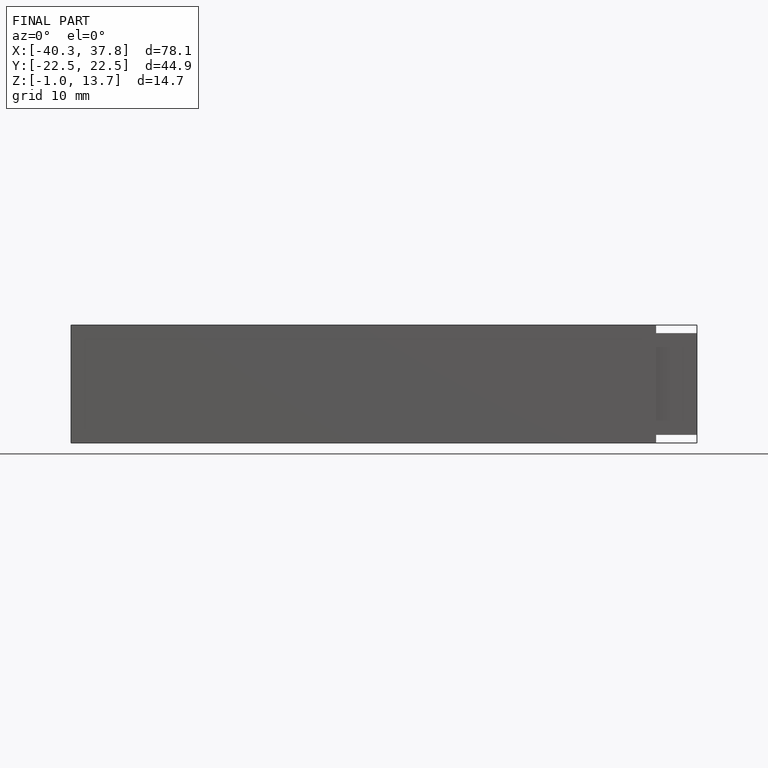
[diagram: finished part — front view with bounding-box wireframe]
